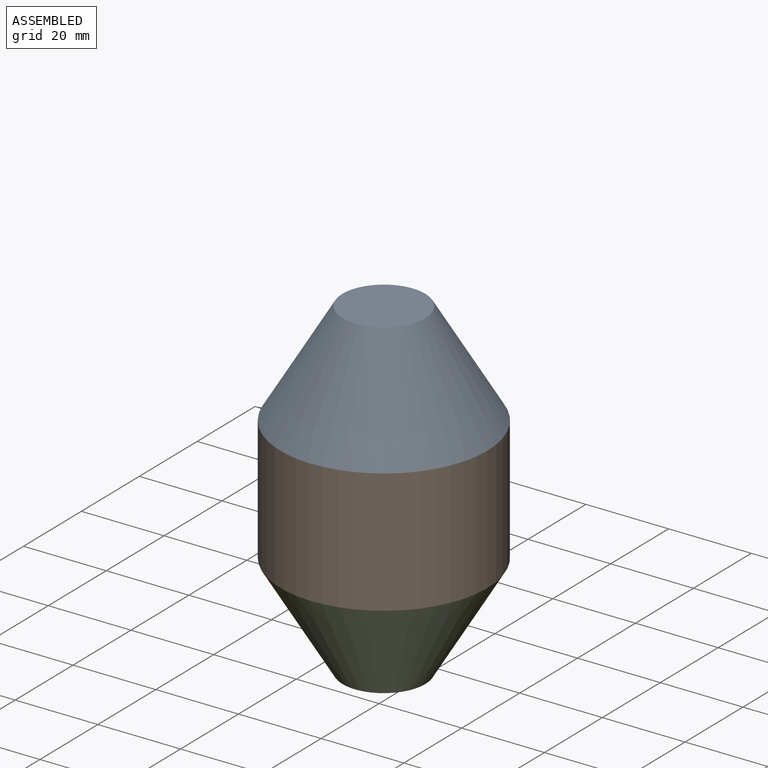
[diagram: assembled view]
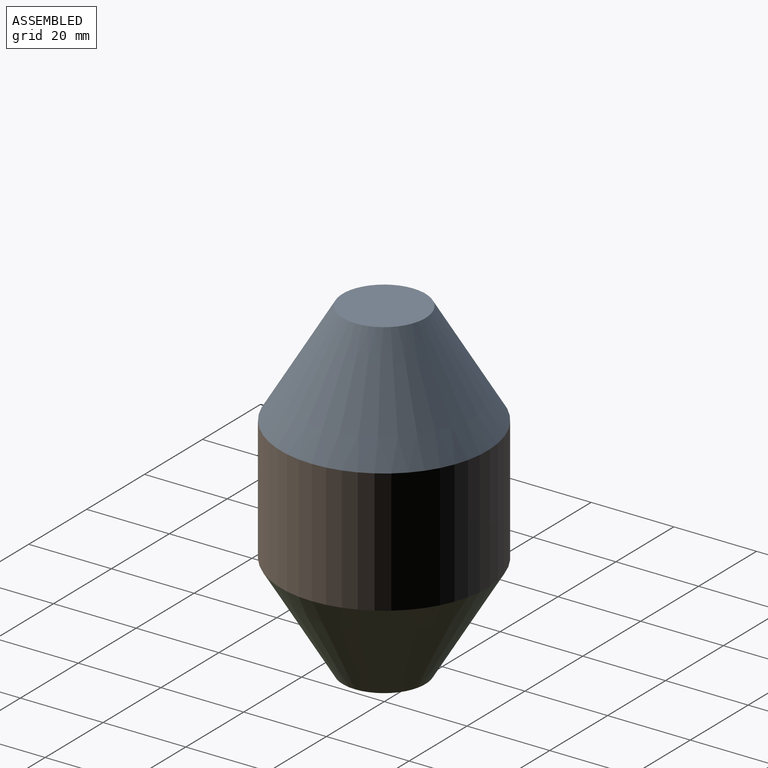
[diagram: assembled view, second angle]
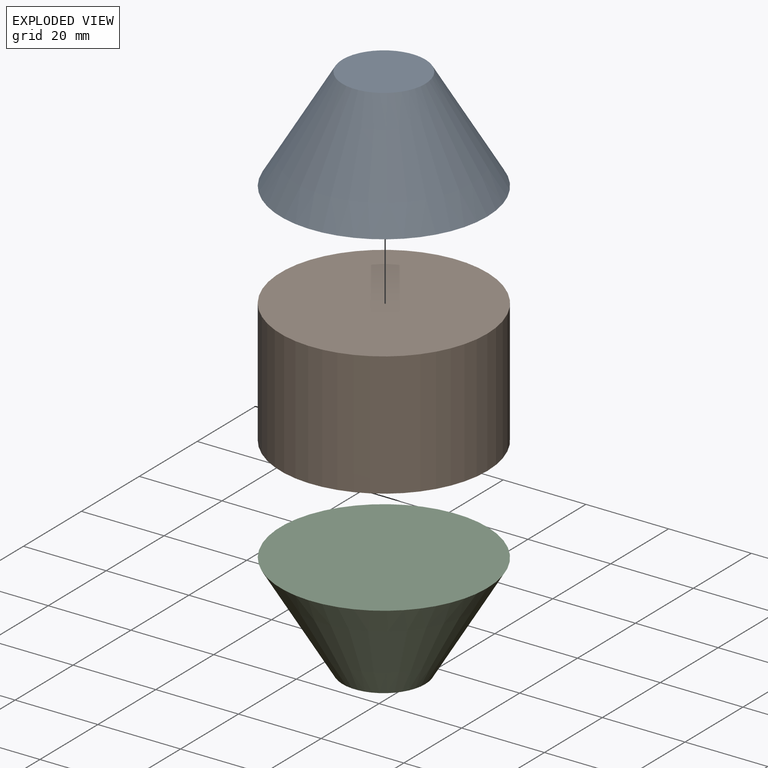
[diagram: exploded view]
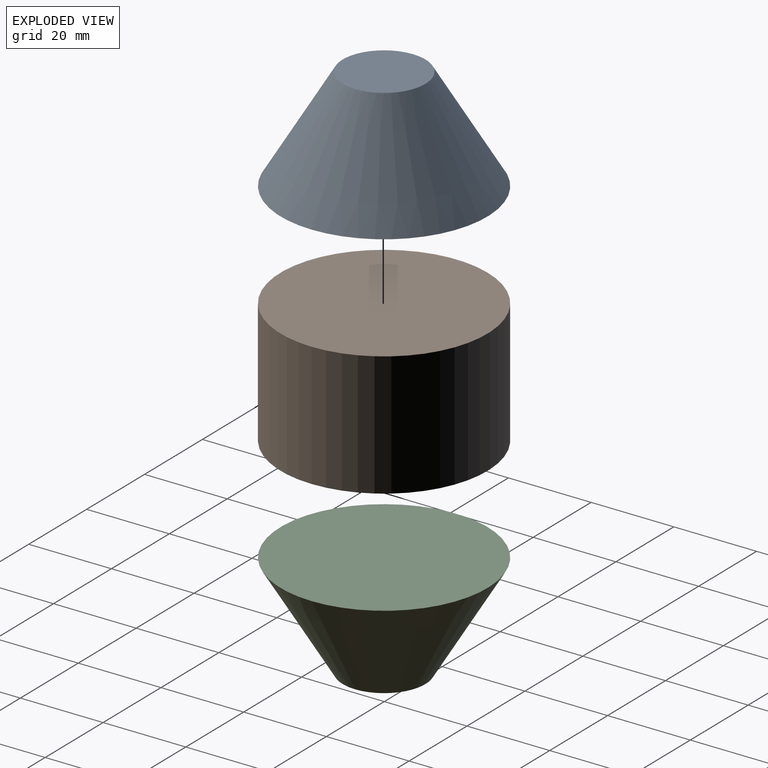
[diagram: exploded view, second angle]
ASSEMBLY  parts=3 mates=2
PART A: 3 faces, bbox 50x50x25 mm
  f0: plane 20x20mm, normal (0,0,1), area 314.2mm2, adj f1
  f1: cone r=10mm half-angle=31deg, axis (0,0,-1), area 3205.7mm2, adj f0,f2
  f2: plane 50x50mm, normal (0,0,-1), area 1963.5mm2, adj f1
PART B: 3 faces, bbox 50x50x30 mm
  f0: plane 50x50mm, normal (0,0,1), area 1963.5mm2, adj f1
  f1: cylinder r=25mm len=50mm, axis (0,0,1), area 4712.4mm2, adj f0,f2
  f2: plane 50x50mm, normal (0,0,-1), area 1963.5mm2, adj f1
PART C: 3 faces, bbox 50x50x25 mm
  f0: plane 50x50mm, normal (0,0,1), area 1963.5mm2, adj f1
  f1: cone r=25mm half-angle=31deg, axis (0,0,1), area 3205.7mm2, adj f0,f2
  f2: plane 20x20mm, normal (0,0,-1), area 314.2mm2, adj f1
PLACE A t=(0.81,0.53,16.39)mm
PLACE B t=(0.81,0.53,25.15)mm
PLACE C t=(0.81,0.53,4.14)mm
MATE fastened B.f1 <-> C.f1  axis (0,0,-1) through (0.81,0.53,12.59)mm
MATE fastened A.f1 <-> B.f1  axis (0,0,-1) through (0.81,0.53,42.59)mm
